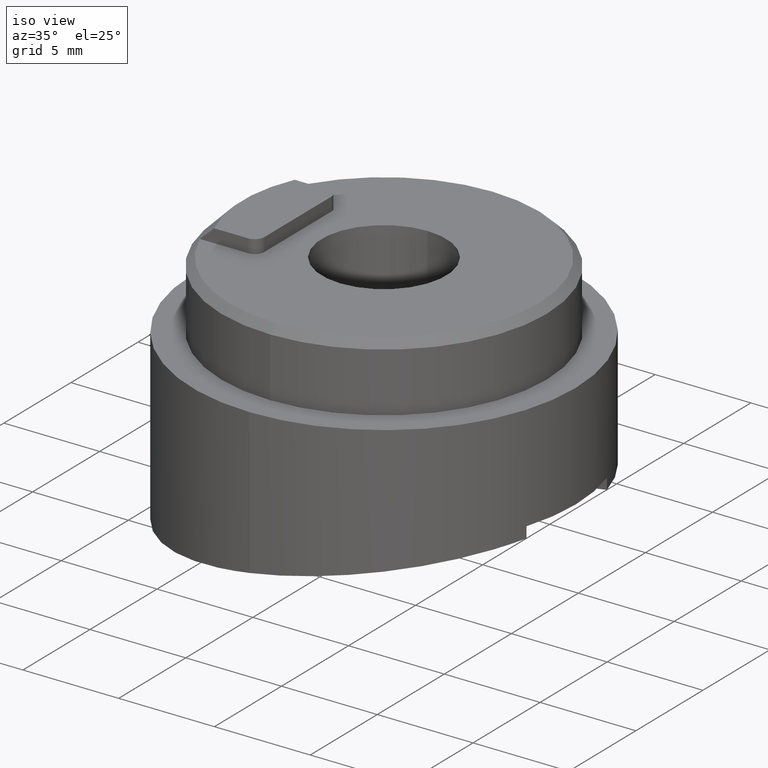
[diagram: clean part render]
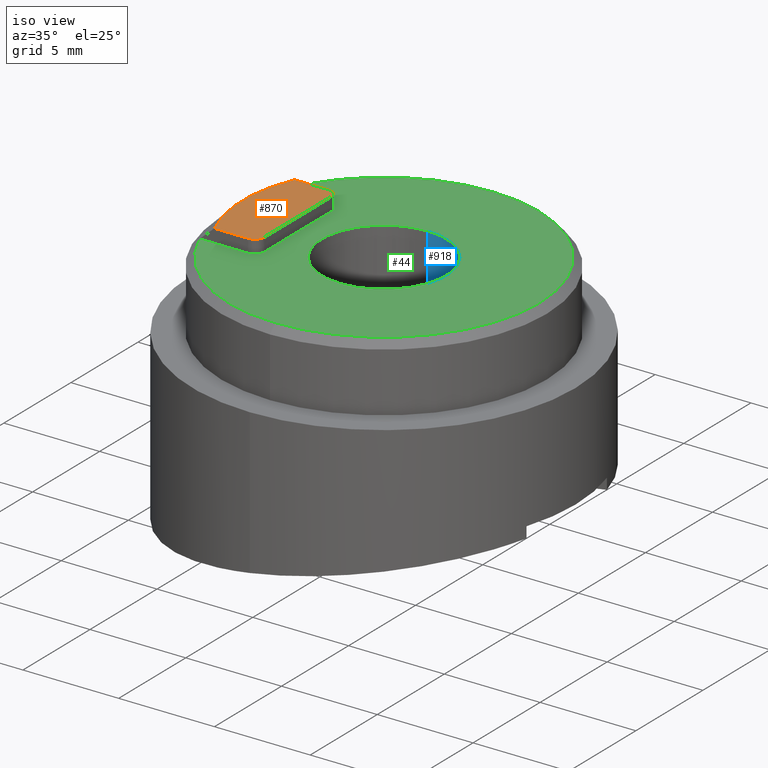
[diagram: same view with three faces highlighted in distinct colors, each labeled with its STEP entity id]
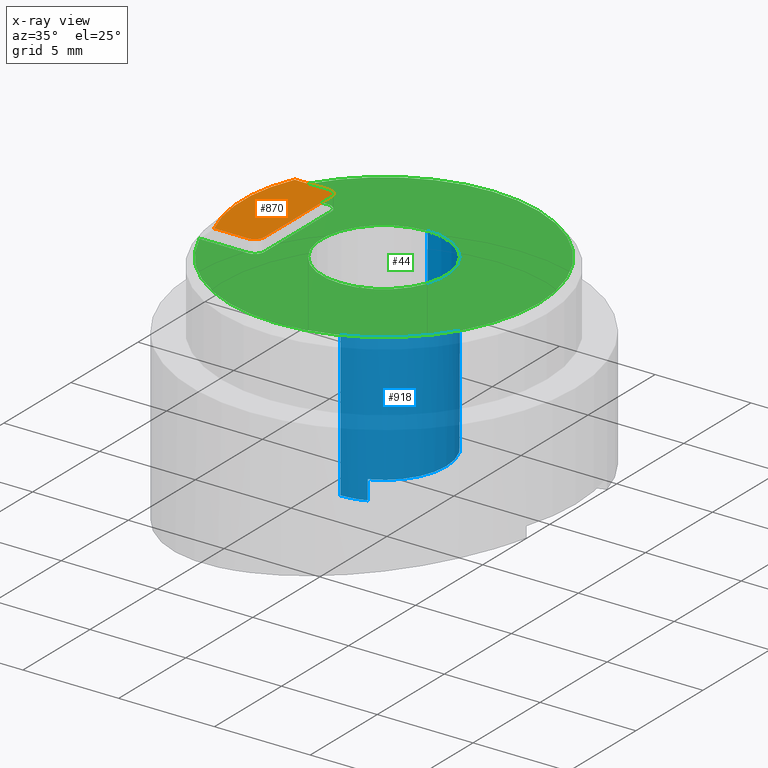
[diagram: x-ray of the same camera — body ghosted, the three highlighted faces saturated]
A machine part, iso view with three faces highlighted in distinct colors.
The next image is the same camera in x-ray (body ghosted, the three faces saturated) — at least one of them is partly hidden behind the body in this view.
Their STEP definitions:

[orange] entity #870 — the highlighted planar face has unit normal (0, 0, -1).
#4 = AXIS2_PLACEMENT_3D ( 'NONE', #77, #323, #830 ) ;
#53 = DIRECTION ( 'NONE',  ( -1.000000000000000000, -1.774937036747276600E-030, 2.761013168273541300E-030 ) ) ;
#74 = VERTEX_POINT ( 'NONE', #518 ) ;
#77 = CARTESIAN_POINT ( 'NONE',  ( -0.6999999999999992900, -4.999999999999948500, -2.500000000000005300 ) ) ;
#90 = DIRECTION ( 'NONE',  ( -3.254051234036662500E-030, 1.734723475976784700E-016, 1.000000000000000000 ) ) ;
#130 = LINE ( 'NONE', #816, #550 ) ;
#139 = VERTEX_POINT ( 'NONE', #1051 ) ;
#183 = VERTEX_POINT ( 'NONE', #965 ) ;
#188 = PLANE ( 'NONE',  #488 ) ;
#190 = ORIENTED_EDGE ( 'NONE', *, *, #548, .T. ) ;
#195 = CARTESIAN_POINT ( 'NONE',  ( -0.6999999999999992900, -4.999999999999997300, -3.000000000000012000 ) ) ;
#205 = LINE ( 'NONE', #972, #884 ) ;
#211 = CIRCLE ( 'NONE', #697, 0.5000000000000017800 ) ;
#232 = CARTESIAN_POINT ( 'NONE',  ( -0.7000000000000027300, -6.764613810115117000, 3.000000000000011500 ) ) ;
#245 = CARTESIAN_POINT ( 'NONE',  ( -0.6999999999999992900, 7.400000000000066100, -3.451266460341926600E-028 ) ) ;
#281 = CARTESIAN_POINT ( 'NONE',  ( -0.7000000000000270500, -4.999999999999997300, 2.500000000000008000 ) ) ;
#288 = DIRECTION ( 'NONE',  ( 2.859620781426157600E-030, 1.630299697923789900E-030, -1.000000000000000000 ) ) ;
#291 = VERTEX_POINT ( 'NONE', #232 ) ;
#308 = ORIENTED_EDGE ( 'NONE', *, *, #911, .F. ) ;
#323 = DIRECTION ( 'NONE',  ( 1.000000000000000000, 1.774937036747276600E-030, -2.761013168273541300E-030 ) ) ;
#476 = CARTESIAN_POINT ( 'NONE',  ( -0.7000000000000270500, 7.400000000000066100, -3.000000000000013300 ) ) ;
#488 = AXIS2_PLACEMENT_3D ( 'NONE', #245, #674, #288 ) ;
#518 = CARTESIAN_POINT ( 'NONE',  ( -0.6999999999999992900, -4.499999999999948500, -2.500000000000004900 ) ) ;
#542 = VERTEX_POINT ( 'NONE', #195 ) ;
#548 = EDGE_CURVE ( 'NONE', #542, #755, #854, .T. ) ;
#550 = VECTOR ( 'NONE', #897, 1000.000000000000000 ) ;
#566 = EDGE_LOOP ( 'NONE', ( #981, #190, #900, #730, #308, #847 ) ) ;
#588 = VECTOR ( 'NONE', #809, 1000.000000000000000 ) ;
#618 = DIRECTION ( 'NONE',  ( 0.0000000000000000000, 0.0000000000000000000, -1.000000000000000000 ) ) ;
#622 = DIRECTION ( 'NONE',  ( 0.0000000000000000000, -1.630299697923789500E-030, 1.000000000000000000 ) ) ;
#672 = FACE_OUTER_BOUND ( 'NONE', #566, .T. ) ;
#674 = DIRECTION ( 'NONE',  ( 1.000000000000000000, 1.774937036747276900E-030, 2.859620781426157600E-030 ) ) ;
#697 = AXIS2_PLACEMENT_3D ( 'NONE', #281, #1016, #618 ) ;
#722 = CIRCLE ( 'NONE', #1058, 7.400000000000037700 ) ;
#730 = ORIENTED_EDGE ( 'NONE', *, *, #848, .F. ) ;
#752 = CARTESIAN_POINT ( 'NONE',  ( -0.6999999999999992900, -6.764613810115117000, -3.000000000000014700 ) ) ;
#755 = VERTEX_POINT ( 'NONE', #752 ) ;
#805 = CIRCLE ( 'NONE', #4, 0.5000000000000017800 ) ;
#809 = DIRECTION ( 'NONE',  ( -1.774937036747270300E-030, -1.000000000000000000, 1.468617672586257100E-016 ) ) ;
#816 = CARTESIAN_POINT ( 'NONE',  ( -0.7000000000000027300, -4.999999999999948500, 3.000000000000014200 ) ) ;
#830 = DIRECTION ( 'NONE',  ( 0.0000000000000000000, 0.0000000000000000000, -1.000000000000000000 ) ) ;
#832 = EDGE_CURVE ( 'NONE', #542, #74, #805, .T. ) ;
#847 = ORIENTED_EDGE ( 'NONE', *, *, #950, .F. ) ;
#848 = EDGE_CURVE ( 'NONE', #139, #291, #130, .T. ) ;
#853 = CARTESIAN_POINT ( 'NONE',  ( -0.6999999999999992900, 0.0000000000000000000, -3.944304526105059000E-028 ) ) ;
#854 = LINE ( 'NONE', #476, #588 ) ;
#870 = ADVANCED_FACE ( 'NONE', ( #672 ), #188, .F. ) ;
#884 = VECTOR ( 'NONE', #90, 1000.000000000000000 ) ;
#897 = DIRECTION ( 'NONE',  ( -1.577721810442018400E-030, -1.000000000000000000, 1.468617672586273100E-016 ) ) ;
#900 = ORIENTED_EDGE ( 'NONE', *, *, #1004, .T. ) ;
#911 = EDGE_CURVE ( 'NONE', #183, #139, #211, .T. ) ;
#950 = EDGE_CURVE ( 'NONE', #74, #183, #205, .T. ) ;
#965 = CARTESIAN_POINT ( 'NONE',  ( -0.7000000000000270500, -4.499999999999997300, 2.500000000000008000 ) ) ;
#972 = CARTESIAN_POINT ( 'NONE',  ( -0.6999999999999992900, -4.499999999999948500, -2.500000000000005300 ) ) ;
#981 = ORIENTED_EDGE ( 'NONE', *, *, #832, .F. ) ;
#1004 = EDGE_CURVE ( 'NONE', #755, #291, #722, .T. ) ;
#1016 = DIRECTION ( 'NONE',  ( 1.000000000000000000, 1.774937036747276600E-030, -2.761013168273541300E-030 ) ) ;
#1051 = CARTESIAN_POINT ( 'NONE',  ( -0.7000000000000027300, -4.999999999999948500, 3.000000000000014200 ) ) ;
#1058 = AXIS2_PLACEMENT_3D ( 'NONE', #853, #53, #622 ) ;

[blue] entity #918 — the highlighted cylindrical surface (partial cylindrical patch) has radius 3.25 mm, axis along (-0, -0, 1).
#6 = CARTESIAN_POINT ( 'NONE',  ( 9.999999999999987600, 0.0000000000000000000, 0.0000000000000000000 ) ) ;
#33 = VERTEX_POINT ( 'NONE', #601 ) ;
#64 = ORIENTED_EDGE ( 'NONE', *, *, #800, .T. ) ;
#69 = DIRECTION ( 'NONE',  ( -1.000000000000000000, -1.774937036747276600E-030, 2.761013168273541300E-030 ) ) ;
#81 = VECTOR ( 'NONE', #439, 1000.000000000000000 ) ;
#95 = DIRECTION ( 'NONE',  ( 0.0000000000000000000, -1.630299697923789500E-030, 1.000000000000000000 ) ) ;
#102 = VERTEX_POINT ( 'NONE', #731 ) ;
#111 = DIRECTION ( 'NONE',  ( 0.0000000000000000000, -1.630299697923789500E-030, 1.000000000000000000 ) ) ;
#115 = DIRECTION ( 'NONE',  ( -1.000000000000000000, -1.774937036747276600E-030, 2.761013168273541300E-030 ) ) ;
#116 = CARTESIAN_POINT ( 'NONE',  ( 0.0000000000000000000, 0.0000000000000000000, 0.0000000000000000000 ) ) ;
#120 = EDGE_CURVE ( 'NONE', #813, #919, #990, .T. ) ;
#129 = EDGE_CURVE ( 'NONE', #369, #490, #861, .T. ) ;
#162 = DIRECTION ( 'NONE',  ( -1.000000000000000000, -1.774937036747276600E-030, 2.761013168273541300E-030 ) ) ;
#170 = DIRECTION ( 'NONE',  ( -1.000000000000000000, -1.774937036747276600E-030, 2.761013168273541300E-030 ) ) ;
#173 = CIRCLE ( 'NONE', #507, 3.250000000000011500 ) ;
#180 = LINE ( 'NONE', #315, #81 ) ;
#182 = EDGE_CURVE ( 'NONE', #369, #102, #180, .T. ) ;
#209 = CARTESIAN_POINT ( 'NONE',  ( -8.973292796889013500E-030, 3.980102097229644700E-016, -3.250000000000000000 ) ) ;
#219 = CARTESIAN_POINT ( 'NONE',  ( 9.999999999999987600, 6.404131785935436300E-029, 3.250000000000000000 ) ) ;
#226 = CARTESIAN_POINT ( 'NONE',  ( 9.999999999999987600, 1.250000000000028900, -3.000000000000013800 ) ) ;
#231 = EDGE_CURVE ( 'NONE', #1029, #490, #1079, .T. ) ;
#270 = EDGE_CURVE ( 'NONE', #546, #33, #967, .T. ) ;
#286 = DIRECTION ( 'NONE',  ( 0.0000000000000000000, -1.630299697923789500E-030, 1.000000000000000000 ) ) ;
#315 = CARTESIAN_POINT ( 'NONE',  ( -34.06605724148842300, -5.298474018252334900E-030, 3.250000000000011500 ) ) ;
#317 = ORIENTED_EDGE ( 'NONE', *, *, #231, .T. ) ;
#320 = EDGE_LOOP ( 'NONE', ( #492, #560, #824, #343, #317, #565, #409, #64 ) ) ;
#328 = DIRECTION ( 'NONE',  ( 1.000000000000000000, 1.774937036747276600E-030, -2.761013168273541300E-030 ) ) ;
#343 = ORIENTED_EDGE ( 'NONE', *, *, #430, .T. ) ;
#352 = DIRECTION ( 'NONE',  ( 0.0000000000000000000, -1.630299697923789500E-030, 1.000000000000000000 ) ) ;
#353 = CARTESIAN_POINT ( 'NONE',  ( -34.06605724148842300, 1.250000000000001100, 3.000000000000013800 ) ) ;
#369 = VERTEX_POINT ( 'NONE', #219 ) ;
#373 = VECTOR ( 'NONE', #170, 1000.000000000000000 ) ;
#375 = CARTESIAN_POINT ( 'NONE',  ( 10.00000000000000200, 1.250000000000001100, 3.000000000000013800 ) ) ;
#409 = ORIENTED_EDGE ( 'NONE', *, *, #182, .T. ) ;
#425 = CARTESIAN_POINT ( 'NONE',  ( -34.06605724148842300, 3.980102097228965300E-016, -3.250000000000011500 ) ) ;
#430 = EDGE_CURVE ( 'NONE', #33, #1029, #820, .T. ) ;
#439 = DIRECTION ( 'NONE',  ( -1.000000000000000000, -1.774937036747276600E-030, 2.761013168273541300E-030 ) ) ;
#448 = VECTOR ( 'NONE', #606, 1000.000000000000000 ) ;
#490 = VERTEX_POINT ( 'NONE', #375 ) ;
#492 = ORIENTED_EDGE ( 'NONE', *, *, #120, .F. ) ;
#507 = AXIS2_PLACEMENT_3D ( 'NONE', #6, #539, #111 ) ;
#510 = CIRCLE ( 'NONE', #725, 3.250000000000011500 ) ;
#539 = DIRECTION ( 'NONE',  ( -1.000000000000000000, -1.774937036747276600E-030, 2.761013168273541300E-030 ) ) ;
#546 = VERTEX_POINT ( 'NONE', #226 ) ;
#560 = ORIENTED_EDGE ( 'NONE', *, *, #705, .F. ) ;
#565 = ORIENTED_EDGE ( 'NONE', *, *, #129, .F. ) ;
#586 = FACE_OUTER_BOUND ( 'NONE', #320, .T. ) ;
#599 = CARTESIAN_POINT ( 'NONE',  ( -34.06605724148842300, 1.250000000000025300, -3.000000000000013800 ) ) ;
#601 = CARTESIAN_POINT ( 'NONE',  ( 8.999999999999987600, 1.250000000000028900, -3.000000000000013800 ) ) ;
#606 = DIRECTION ( 'NONE',  ( -1.000000000000000000, -1.774937036747276600E-030, 2.761013168273541300E-030 ) ) ;
#636 = DIRECTION ( 'NONE',  ( 1.000000000000000000, 1.774937036747276600E-030, -2.761013168273541300E-030 ) ) ;
#699 = CARTESIAN_POINT ( 'NONE',  ( 9.000000000000001800, 1.250000000000001100, 3.000000000000013800 ) ) ;
#705 = EDGE_CURVE ( 'NONE', #546, #813, #173, .T. ) ;
#725 = AXIS2_PLACEMENT_3D ( 'NONE', #116, #115, #784 ) ;
#731 = CARTESIAN_POINT ( 'NONE',  ( 8.973292796889010700E-030, 6.404131785935437400E-029, 3.250000000000000000 ) ) ;
#770 = CARTESIAN_POINT ( 'NONE',  ( 8.999999999999987600, 0.0000000000000000000, -3.944304526105059000E-028 ) ) ;
#784 = DIRECTION ( 'NONE',  ( 2.859620781426157600E-030, 1.630299697923789500E-030, -1.000000000000000000 ) ) ;
#785 = AXIS2_PLACEMENT_3D ( 'NONE', #770, #328, #95 ) ;
#800 = EDGE_CURVE ( 'NONE', #102, #919, #510, .T. ) ;
#813 = VERTEX_POINT ( 'NONE', #1059 ) ;
#820 = CIRCLE ( 'NONE', #785, 3.250000000000011500 ) ;
#824 = ORIENTED_EDGE ( 'NONE', *, *, #270, .T. ) ;
#850 = CARTESIAN_POINT ( 'NONE',  ( -34.06605724148842300, 0.0000000000000000000, 0.0000000000000000000 ) ) ;
#861 = CIRCLE ( 'NONE', #969, 3.250000000000011500 ) ;
#918 = ADVANCED_FACE ( 'NONE', ( #586 ), #931, .F. ) ;
#919 = VERTEX_POINT ( 'NONE', #209 ) ;
#931 = CYLINDRICAL_SURFACE ( 'NONE', #945, 3.250000000000011500 ) ;
#945 = AXIS2_PLACEMENT_3D ( 'NONE', #850, #162, #286 ) ;
#948 = CARTESIAN_POINT ( 'NONE',  ( 9.999999999999987600, 0.0000000000000000000, 0.0000000000000000000 ) ) ;
#967 = LINE ( 'NONE', #599, #448 ) ;
#969 = AXIS2_PLACEMENT_3D ( 'NONE', #948, #69, #352 ) ;
#990 = LINE ( 'NONE', #425, #373 ) ;
#1029 = VERTEX_POINT ( 'NONE', #699 ) ;
#1034 = VECTOR ( 'NONE', #636, 1000.000000000000000 ) ;
#1059 = CARTESIAN_POINT ( 'NONE',  ( 9.999999999999987600, 3.980102097229644700E-016, -3.250000000000000000 ) ) ;
#1079 = LINE ( 'NONE', #353, #1034 ) ;

[green] entity #44 — the highlighted planar face has unit normal (0, 0, -1).
#3 = CARTESIAN_POINT ( 'NONE',  ( 0.0000000000000000000, 0.0000000000000000000, 0.0000000000000000000 ) ) ;
#10 = DIRECTION ( 'NONE',  ( 0.0000000000000000000, 0.0000000000000000000, -1.000000000000000000 ) ) ;
#11 = ORIENTED_EDGE ( 'NONE', *, *, #243, .F. ) ;
#15 = FACE_OUTER_BOUND ( 'NONE', #628, .T. ) ;
#28 = CARTESIAN_POINT ( 'NONE',  ( 0.0000000000000000000, -4.999999999999948500, 3.000000000000014200 ) ) ;
#44 = ADVANCED_FACE ( 'NONE', ( #15, #477 ), #443, .F. ) ;
#63 = CARTESIAN_POINT ( 'NONE',  ( 0.0000000000000000000, 0.0000000000000000000, 0.0000000000000000000 ) ) ;
#100 = DIRECTION ( 'NONE',  ( -3.254051234036662500E-030, 1.734723475976784700E-016, 1.000000000000000000 ) ) ;
#102 = VERTEX_POINT ( 'NONE', #731 ) ;
#115 = DIRECTION ( 'NONE',  ( -1.000000000000000000, -1.774937036747276600E-030, 2.761013168273541300E-030 ) ) ;
#116 = CARTESIAN_POINT ( 'NONE',  ( 0.0000000000000000000, 0.0000000000000000000, 0.0000000000000000000 ) ) ;
#147 = CIRCLE ( 'NONE', #917, 8.100000000000033400 ) ;
#168 = ORIENTED_EDGE ( 'NONE', *, *, #471, .F. ) ;
#172 = CIRCLE ( 'NONE', #838, 8.100000000000033400 ) ;
#204 = DIRECTION ( 'NONE',  ( 1.000000000000000000, 1.774937036747276600E-030, -2.761013168273541300E-030 ) ) ;
#208 = ORIENTED_EDGE ( 'NONE', *, *, #362, .T. ) ;
#209 = CARTESIAN_POINT ( 'NONE',  ( -8.973292796889013500E-030, 3.980102097229644700E-016, -3.250000000000000000 ) ) ;
#223 = DIRECTION ( 'NONE',  ( -1.000000000000000000, -1.774937036747276600E-030, 2.761013168273541300E-030 ) ) ;
#236 = ORIENTED_EDGE ( 'NONE', *, *, #807, .F. ) ;
#241 = ORIENTED_EDGE ( 'NONE', *, *, #247, .T. ) ;
#243 = EDGE_CURVE ( 'NONE', #919, #102, #478, .T. ) ;
#246 = VERTEX_POINT ( 'NONE', #541 ) ;
#247 = EDGE_CURVE ( 'NONE', #627, #246, #405, .T. ) ;
#253 = VERTEX_POINT ( 'NONE', #348 ) ;
#259 = DIRECTION ( 'NONE',  ( 2.859620781426157600E-030, 0.0000000000000000000, -1.000000000000000000 ) ) ;
#265 = CARTESIAN_POINT ( 'NONE',  ( 0.0000000000000000000, 0.0000000000000000000, 0.0000000000000000000 ) ) ;
#274 = EDGE_CURVE ( 'NONE', #713, #627, #783, .T. ) ;
#304 = DIRECTION ( 'NONE',  ( 2.859620781426157600E-030, 1.630299697923789500E-030, -1.000000000000000000 ) ) ;
#348 = CARTESIAN_POINT ( 'NONE',  ( 2.236420666301577800E-029, 9.919639073093470500E-016, 8.100000000000033400 ) ) ;
#361 = VERTEX_POINT ( 'NONE', #887 ) ;
#362 = EDGE_CURVE ( 'NONE', #361, #635, #1019, .T. ) ;
#402 = AXIS2_PLACEMENT_3D ( 'NONE', #868, #531, #515 ) ;
#405 = CIRCLE ( 'NONE', #534, 0.5000000000000017800 ) ;
#434 = LINE ( 'NONE', #914, #504 ) ;
#443 = PLANE ( 'NONE',  #402 ) ;
#463 = VERTEX_POINT ( 'NONE', #497 ) ;
#471 = EDGE_CURVE ( 'NONE', #253, #635, #172, .T. ) ;
#477 = FACE_BOUND ( 'NONE', #913, .T. ) ;
#478 = CIRCLE ( 'NONE', #581, 3.250000000000011500 ) ;
#487 = CARTESIAN_POINT ( 'NONE',  ( 0.0000000000000000000, 0.0000000000000000000, 0.0000000000000000000 ) ) ;
#491 = VERTEX_POINT ( 'NONE', #977 ) ;
#497 = CARTESIAN_POINT ( 'NONE',  ( -2.775557561562891400E-014, -4.499999999999997300, 2.500000000000008000 ) ) ;
#504 = VECTOR ( 'NONE', #100, 1000.000000000000000 ) ;
#509 = VECTOR ( 'NONE', #764, 1000.000000000000000 ) ;
#510 = CIRCLE ( 'NONE', #725, 3.250000000000011500 ) ;
#515 = DIRECTION ( 'NONE',  ( 2.859620781426157600E-030, 1.630299697923789900E-030, -1.000000000000000000 ) ) ;
#524 = DIRECTION ( 'NONE',  ( 1.000000000000000000, 1.774937036747276600E-030, -2.761013168273541300E-030 ) ) ;
#531 = DIRECTION ( 'NONE',  ( 1.000000000000000000, 1.774937036747276900E-030, 2.859620781426157600E-030 ) ) ;
#534 = AXIS2_PLACEMENT_3D ( 'NONE', #676, #922, #259 ) ;
#541 = CARTESIAN_POINT ( 'NONE',  ( 0.0000000000000000000, -4.499999999999948500, -2.500000000000005300 ) ) ;
#561 = EDGE_CURVE ( 'NONE', #246, #463, #434, .T. ) ;
#581 = AXIS2_PLACEMENT_3D ( 'NONE', #63, #223, #304 ) ;
#585 = CARTESIAN_POINT ( 'NONE',  ( -2.775557561562891400E-014, -7.523961722390677800, -3.000000000000011500 ) ) ;
#597 = EDGE_CURVE ( 'NONE', #491, #253, #147, .T. ) ;
#600 = VECTOR ( 'NONE', #1042, 1000.000000000000000 ) ;
#602 = CIRCLE ( 'NONE', #640, 0.5000000000000017800 ) ;
#627 = VERTEX_POINT ( 'NONE', #778 ) ;
#628 = EDGE_LOOP ( 'NONE', ( #753, #241, #760, #896, #208, #168, #777, #236 ) ) ;
#635 = VERTEX_POINT ( 'NONE', #692 ) ;
#640 = AXIS2_PLACEMENT_3D ( 'NONE', #953, #204, #10 ) ;
#665 = CIRCLE ( 'NONE', #904, 8.100000000000033400 ) ;
#670 = DIRECTION ( 'NONE',  ( 2.859620781426157600E-030, 1.630299697923789900E-030, -1.000000000000000000 ) ) ;
#676 = CARTESIAN_POINT ( 'NONE',  ( 0.0000000000000000000, -4.999999999999948500, -2.500000000000005300 ) ) ;
#692 = CARTESIAN_POINT ( 'NONE',  ( 0.0000000000000000000, -7.523961722390670700, 3.000000000000013800 ) ) ;
#713 = VERTEX_POINT ( 'NONE', #585 ) ;
#725 = AXIS2_PLACEMENT_3D ( 'NONE', #116, #115, #784 ) ;
#731 = CARTESIAN_POINT ( 'NONE',  ( 8.973292796889010700E-030, 6.404131785935437400E-029, 3.250000000000000000 ) ) ;
#753 = ORIENTED_EDGE ( 'NONE', *, *, #274, .T. ) ;
#760 = ORIENTED_EDGE ( 'NONE', *, *, #561, .T. ) ;
#764 = DIRECTION ( 'NONE',  ( -1.577721810442018400E-030, -1.000000000000000000, 1.468617672586273100E-016 ) ) ;
#766 = ORIENTED_EDGE ( 'NONE', *, *, #800, .F. ) ;
#777 = ORIENTED_EDGE ( 'NONE', *, *, #597, .F. ) ;
#778 = CARTESIAN_POINT ( 'NONE',  ( 0.0000000000000000000, -4.999999999999997300, -3.000000000000012000 ) ) ;
#783 = LINE ( 'NONE', #1028, #600 ) ;
#784 = DIRECTION ( 'NONE',  ( 2.859620781426157600E-030, 1.630299697923789500E-030, -1.000000000000000000 ) ) ;
#800 = EDGE_CURVE ( 'NONE', #102, #919, #510, .T. ) ;
#804 = DIRECTION ( 'NONE',  ( 1.000000000000000000, 1.774937036747276600E-030, -2.761013168273541300E-030 ) ) ;
#807 = EDGE_CURVE ( 'NONE', #713, #491, #665, .T. ) ;
#838 = AXIS2_PLACEMENT_3D ( 'NONE', #3, #840, #991 ) ;
#840 = DIRECTION ( 'NONE',  ( 1.000000000000000000, 1.774937036747276600E-030, -2.761013168273541300E-030 ) ) ;
#868 = CARTESIAN_POINT ( 'NONE',  ( 0.0000000000000000000, -4.999999999999948500, -2.500000000000005300 ) ) ;
#887 = CARTESIAN_POINT ( 'NONE',  ( 0.0000000000000000000, -4.999999999999948500, 3.000000000000014200 ) ) ;
#896 = ORIENTED_EDGE ( 'NONE', *, *, #910, .T. ) ;
#904 = AXIS2_PLACEMENT_3D ( 'NONE', #265, #804, #670 ) ;
#910 = EDGE_CURVE ( 'NONE', #463, #361, #602, .T. ) ;
#913 = EDGE_LOOP ( 'NONE', ( #766, #11 ) ) ;
#914 = CARTESIAN_POINT ( 'NONE',  ( 0.0000000000000000000, -4.499999999999948500, -2.500000000000005300 ) ) ;
#917 = AXIS2_PLACEMENT_3D ( 'NONE', #487, #524, #1036 ) ;
#919 = VERTEX_POINT ( 'NONE', #209 ) ;
#922 = DIRECTION ( 'NONE',  ( 1.000000000000000000, 1.774937036747276600E-030, -2.761013168273541300E-030 ) ) ;
#953 = CARTESIAN_POINT ( 'NONE',  ( -2.775557561562891400E-014, -4.999999999999997300, 2.500000000000008000 ) ) ;
#977 = CARTESIAN_POINT ( 'NONE',  ( -2.236420666301578100E-029, 1.320542755318275200E-029, -8.100000000000033400 ) ) ;
#991 = DIRECTION ( 'NONE',  ( 2.859620781426157600E-030, 1.630299697923789900E-030, -1.000000000000000000 ) ) ;
#1019 = LINE ( 'NONE', #28, #509 ) ;
#1028 = CARTESIAN_POINT ( 'NONE',  ( -2.775557561562891400E-014, -7.952986860293435700, -3.000000000000011500 ) ) ;
#1036 = DIRECTION ( 'NONE',  ( 2.859620781426157600E-030, 1.630299697923789900E-030, -1.000000000000000000 ) ) ;
#1042 = DIRECTION ( 'NONE',  ( 1.774937036747270300E-030, 1.000000000000000000, -1.468617672586257100E-016 ) ) ;